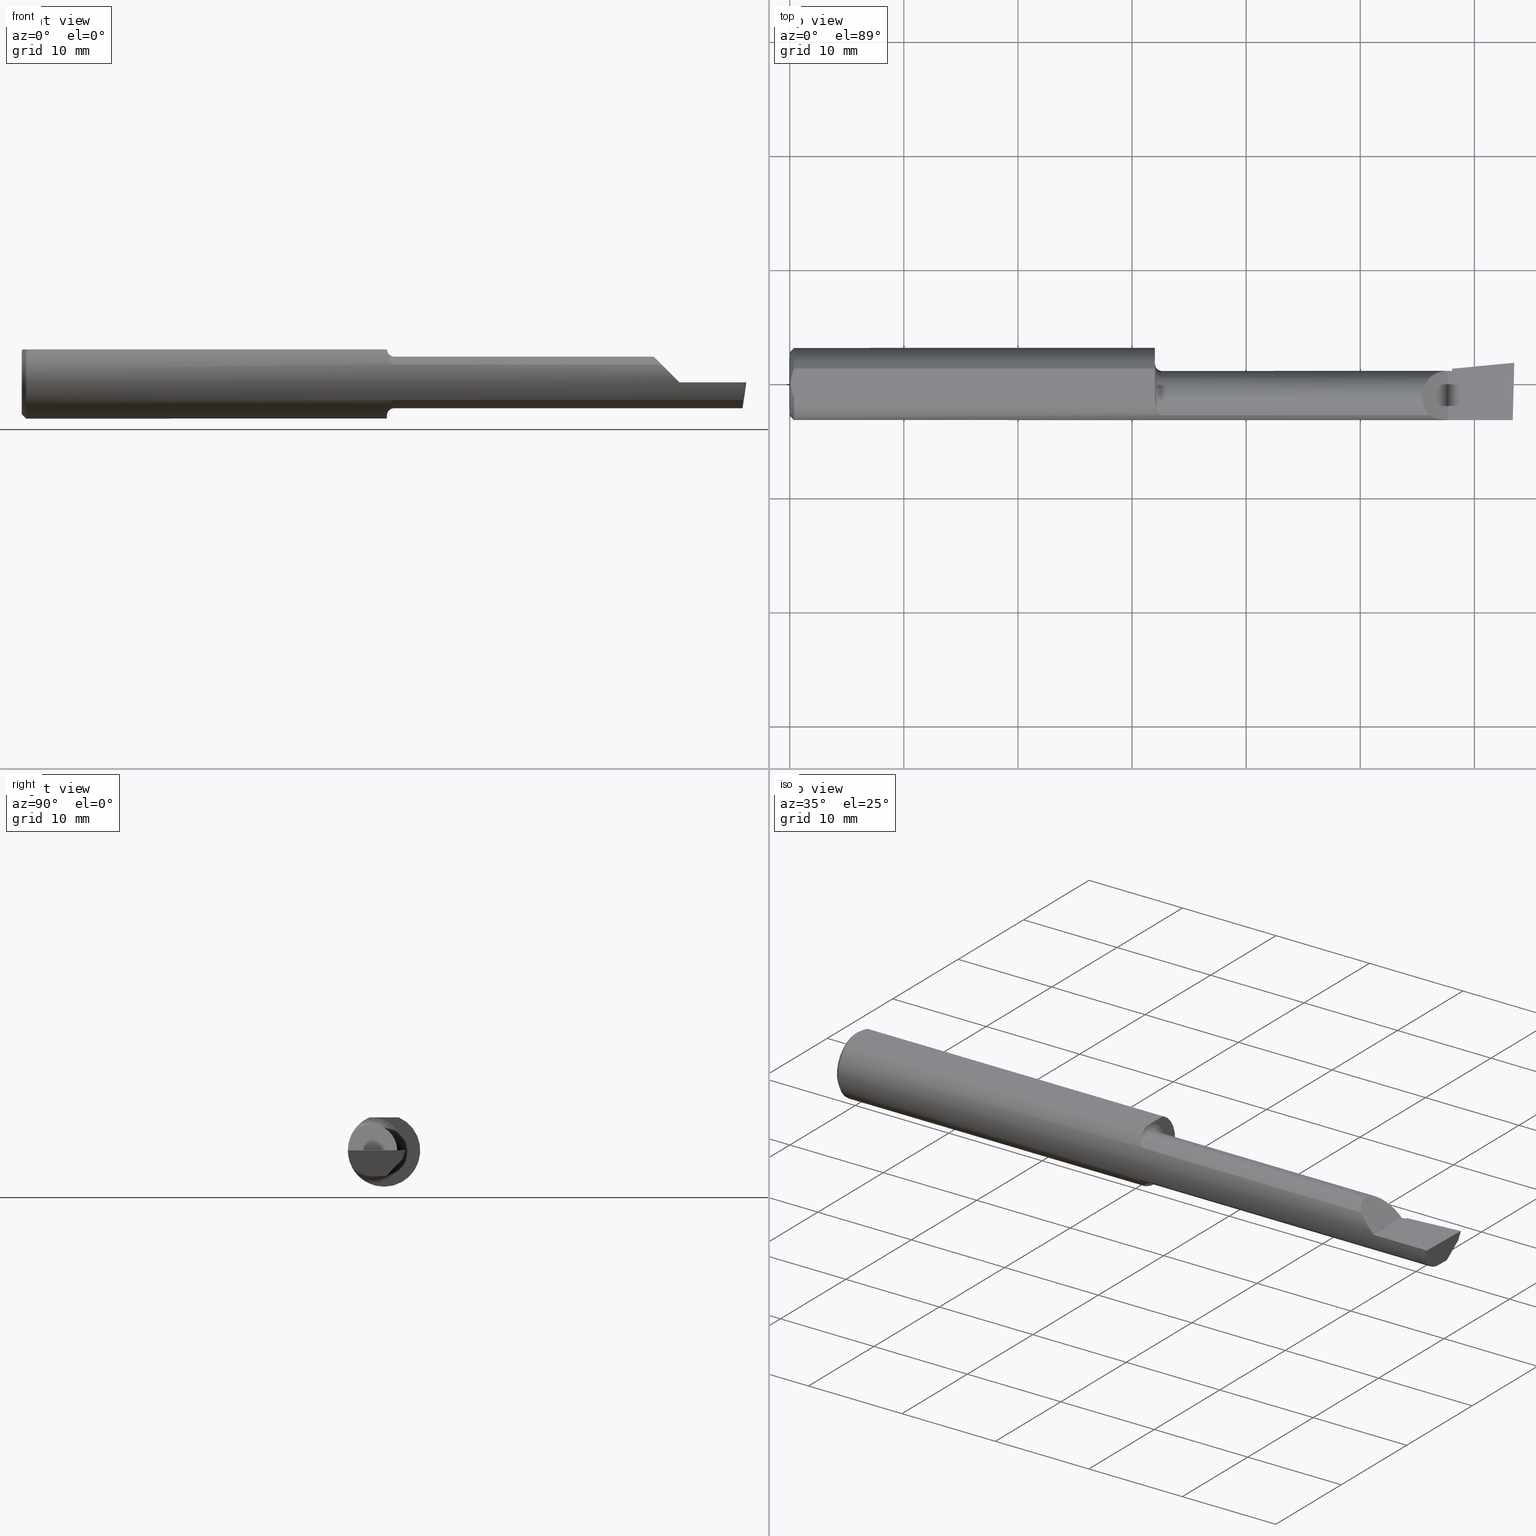
[diagram: canonical four-view strip — front | top / right | iso, engineering-drawing reading convention]
A machine part, canonical four-view strip (front | top / right | iso — engineering-drawing reading convention). The complete STEP part file that produces these views, byte-faithful:
ISO-10303-21;
HEADER;
FILE_DESCRIPTION (( 'STEP AP214' ),
    '1' );
FILE_NAME ('B2001200.STEP',
    '2019-07-25T18:29:06',
    ( '' ),
    ( '' ),
    'SwSTEP 2.0',
    'SolidWorks 2018',
    '' );
FILE_SCHEMA (( 'AUTOMOTIVE_DESIGN' ));
ENDSEC;

DATA;
#1 = EDGE_CURVE ( 'NONE', #212, #459, #601, .T. ) ;
#2 = DIRECTION ( 'NONE',  ( -1.000000000000000000, -0.0000000000000000000, -0.0000000000000000000 ) ) ;
#3 = CARTESIAN_POINT ( 'NONE',  ( 0.01499999999999999424, 0.0000000000000000000, -0.1248500000000000026 ) ) ;
#4 = VERTEX_POINT ( 'NONE', #612 ) ;
#5 = EDGE_LOOP ( 'NONE', ( #502, #96, #547, #313 ) ) ;
#6 = VECTOR ( 'NONE', #229, 39.37007874015748143 ) ;
#7 = AXIS2_PLACEMENT_3D ( 'NONE', #246, #311, #664 ) ;
#8 = CARTESIAN_POINT ( 'NONE',  ( 0.0000000000000000000, 0.0000000000000000000, 0.0000000000000000000 ) ) ;
#9 = CARTESIAN_POINT ( 'NONE',  ( 1.281430773366643461, -0.1083837666170488351, -0.06198269038834007538 ) ) ;
#10 = EDGE_CURVE ( 'NONE', #441, #703, #530, .T. ) ;
#11 = PLANE ( 'NONE',  #689 ) ;
#12 = CARTESIAN_POINT ( 'NONE',  ( 2.487308770579542028, 0.006654974371325369023, -0.08914999999999999314 ) ) ;
#13 = EDGE_CURVE ( 'NONE', #358, #156, #445, .T. ) ;
#14 = CARTESIAN_POINT ( 'NONE',  ( 0.004000000000000276772, 1.406179932551309785E-17, 0.1138500000000000345 ) ) ;
#15 = CIRCLE ( 'NONE', #607, 0.1248500000000000026 ) ;
#16 = VECTOR ( 'NONE', #574, 39.37007874015748143 ) ;
#17 = CARTESIAN_POINT ( 'NONE',  ( 2.180849999999999511, -0.04399999999999999745, 0.08914999999999992375 ) ) ;
#18 = EDGE_LOOP ( 'NONE', ( #591, #214, #261, #654, #307 ) ) ;
#19 = FACE_OUTER_BOUND ( 'NONE', #440, .T. ) ;
#20 = CARTESIAN_POINT ( 'NONE',  ( 0.004000000000000247281, 0.008831293378136248484, 0.1138500000000000345 ) ) ;
#21 = ORIENTED_EDGE ( 'NONE', *, *, #245, .F. ) ;
#22 = DIRECTION ( 'NONE',  ( 1.000000000000000000, 0.0000000000000000000, 0.0000000000000000000 ) ) ;
#23 = B_SPLINE_CURVE_WITH_KNOTS ( 'NONE', 3,
 ( #427, #216, #429, #33, #84, #262, #485, #204, #269, #527, #196, #312, #325, #706 ),
 .UNSPECIFIED., .F., .F.,
 ( 4, 2, 2, 2, 2, 2, 4 ),
 ( 4.804672440286754223E-07, 0.0005473133578846782824, 0.001094146248525327755, 0.001640979139165977445, 0.001914395584486301965, 0.002051103807146470188, 0.002187812029806637543 ),
 .UNSPECIFIED. ) ;
#24 = ADVANCED_FACE ( 'NONE', ( #404 ), #719, .T. ) ;
#25 = PLANE ( 'NONE',  #614 ) ;
#26 = ORIENTED_EDGE ( 'NONE', *, *, #158, .T. ) ;
#27 = CYLINDRICAL_SURFACE ( 'NONE', #506, 0.1248500000000000026 ) ;
#28 = EDGE_LOOP ( 'NONE', ( #331, #395, #567, #220, #241, #605 ) ) ;
#29 = CARTESIAN_POINT ( 'NONE',  ( 1.260000000000000231, 0.1748500000000000609, 0.1138500000000000068 ) ) ;
#30 = ORIENTED_EDGE ( 'NONE', *, *, #419, .F. ) ;
#31 = DIMENSIONAL_EXPONENTS ( 1.000000000000000000, 0.0000000000000000000, 0.0000000000000000000, 0.0000000000000000000, 0.0000000000000000000, 0.0000000000000000000, 0.0000000000000000000 ) ;
#32 = CARTESIAN_POINT ( 'NONE',  ( 0.0000000000000000000, 0.0000000000000000000, 0.0000000000000000000 ) ) ;
#33 = CARTESIAN_POINT ( 'NONE',  ( 1.261949480984350558, -0.07596136197082528629, 0.09933958580654499160 ) ) ;
#34 = ADVANCED_FACE ( 'NONE', ( #104 ), #217, .F. ) ;
#35 = DIRECTION ( 'NONE',  ( -0.1053106618241860248, -0.6976485211320166968, -0.7086580314005210823 ) ) ;
#36 = CARTESIAN_POINT ( 'NONE',  ( 0.008876515511621064711, 0.03469031959364227147, 0.1138500000000000206 ) ) ;
#37 = DIRECTION ( 'NONE',  ( 0.0000000000000000000, 0.0000000000000000000, 1.000000000000000000 ) ) ;
#38 = TOROIDAL_SURFACE ( 'NONE', #437, 0.1141499999999998766, 0.02499999999999993894 ) ;
#39 = ORIENTED_EDGE ( 'NONE', *, *, #454, .T. ) ;
#40 = DIRECTION ( 'NONE',  ( 0.0000000000000000000, 0.0000000000000000000, 1.000000000000000000 ) ) ;
#41 = EDGE_CURVE ( 'NONE', #208, #279, #425, .T. ) ;
#42 = EDGE_CURVE ( 'NONE', #725, #74, #260, .T. ) ;
#43 = VERTEX_POINT ( 'NONE', #57 ) ;
#44 = CIRCLE ( 'NONE', #345, 0.08914999999999986824 ) ;
#45 = CARTESIAN_POINT ( 'NONE',  ( 2.286008923699899054, 0.02626115987714458533, -0.06897064857157146622 ) ) ;
#46 = DIRECTION ( 'NONE',  ( 0.0000000000000000000, 0.0000000000000000000, 1.000000000000000000 ) ) ;
#47 = CARTESIAN_POINT ( 'NONE',  ( 4.111069666048746882E-31, -0.1248499999999999888, 9.802154982235641300E-16 ) ) ;
#48 = CARTESIAN_POINT ( 'NONE',  ( 2.285000000000000142, -0.04399999999999999745, 0.0000000000000000000 ) ) ;
#49 = CARTESIAN_POINT ( 'NONE',  ( 2.500000000000000000, -0.04399999999999999745, -0.08914999999999999314 ) ) ;
#50 = ORIENTED_EDGE ( 'NONE', *, *, #130, .T. ) ;
#51 = LINE ( 'NONE', #144, #368 ) ;
#52 = ORIENTED_EDGE ( 'NONE', *, *, #268, .T. ) ;
#53 = EDGE_CURVE ( 'NONE', #74, #43, #384, .T. ) ;
#54 = CIRCLE ( 'NONE', #532, 0.1248500000000000026 ) ;
#55 = EDGE_LOOP ( 'NONE', ( #248, #439, #30, #148 ) ) ;
#56 = DIRECTION ( 'NONE',  ( -1.000000000000000000, -0.0000000000000000000, -0.0000000000000000000 ) ) ;
#57 = CARTESIAN_POINT ( 'NONE',  ( 0.01499999999999999424, 0.0000000000000000000, -0.1248500000000000026 ) ) ;
#58 = DIRECTION ( 'NONE',  ( 0.0000000000000000000, 0.0000000000000000000, -1.000000000000000000 ) ) ;
#59 = AXIS2_PLACEMENT_3D ( 'NONE', #704, #478, #37 ) ;
#60 = EDGE_CURVE ( 'NONE', #212, #303, #652, .T. ) ;
#61 = ORIENTED_EDGE ( 'NONE', *, *, #579, .T. ) ;
#62 = CYLINDRICAL_SURFACE ( 'NONE', #438, 0.08914999999999992375 ) ;
#63 = AXIS2_PLACEMENT_3D ( 'NONE', #49, #106, #492 ) ;
#64 = CARTESIAN_POINT ( 'NONE',  ( 2.285000000000000142, 0.04514999999999999569, 9.802154982235649188E-16 ) ) ;
#65 = EDGE_CURVE ( 'NONE', #348, #150, #330, .T. ) ;
#66 = ORIENTED_EDGE ( 'NONE', *, *, #483, .F. ) ;
#67 = DIRECTION ( 'NONE',  ( 0.0000000000000000000, -3.510412528412468112E-13, -1.000000000000000000 ) ) ;
#68 = DIRECTION ( 'NONE',  ( 0.0000000000000000000, 0.0000000000000000000, 1.000000000000000000 ) ) ;
#69 = CARTESIAN_POINT ( 'NONE',  ( 0.004000000000000276772, 1.406179932551309785E-17, 0.1138500000000000345 ) ) ;
#70 = CARTESIAN_POINT ( 'NONE',  ( 0.008889541251485983883, -0.03475029298915140868, 0.1138500000000000484 ) ) ;
#71 = CARTESIAN_POINT ( 'NONE',  ( 1.272652750757542472, -0.1022351105670217114, -0.07173965961731927632 ) ) ;
#72 = VERTEX_POINT ( 'NONE', #561 ) ;
#73 = PRESENTATION_STYLE_ASSIGNMENT (( #650 ) ) ;
#74 = VERTEX_POINT ( 'NONE', #336 ) ;
#75 = LINE ( 'NONE', #498, #183 ) ;
#76 = DIRECTION ( 'NONE',  ( 0.0000000000000000000, 0.0000000000000000000, 1.000000000000000000 ) ) ;
#77 = CARTESIAN_POINT ( 'NONE',  ( 1.268397821753969978, -0.09628495161689389070, -0.07975604660947217817 ) ) ;
#78 = CARTESIAN_POINT ( 'NONE',  ( 2.270000000000000018, -0.2500000000000000555, 2.816687638038912303E-17 ) ) ;
#79 = CARTESIAN_POINT ( 'NONE',  ( 1.261502585305459334, -0.07647633808930123789, -0.09967851947582057059 ) ) ;
#80 = CARTESIAN_POINT ( 'NONE',  ( 1.285000000000000142, -0.04399999999999997663, -0.08914999999999986824 ) ) ;
#81 = EDGE_LOOP ( 'NONE', ( #709, #166, #182, #558, #554, #578 ) ) ;
#82 = CARTESIAN_POINT ( 'NONE',  ( 2.285000000000000142, -0.2500000000000000555, 2.187580619199813988E-17 ) ) ;
#83 = DIRECTION ( 'NONE',  ( 0.0000000000000000000, 0.0000000000000000000, 1.000000000000000000 ) ) ;
#84 = CARTESIAN_POINT ( 'NONE',  ( 1.263123628621569905, -0.08156933505717113564, 0.09478144068341103068 ) ) ;
#85 = B_SPLINE_CURVE_WITH_KNOTS ( 'NONE', 3,
 ( #678, #684, #70, #346, #116, #623 ),
 .UNSPECIFIED., .F., .F.,
 ( 4, 2, 4 ),
 ( 0.0009713770995563918240, 0.001637314107522508649, 0.002303251115488625256 ),
 .UNSPECIFIED. ) ;
#86 = DIRECTION ( 'NONE',  ( -1.000000000000000000, -0.0000000000000000000, -0.0000000000000000000 ) ) ;
#87 = VECTOR ( 'NONE', #421, 39.37007874015748143 ) ;
#88 = VERTEX_POINT ( 'NONE', #344 ) ;
#89 = DIRECTION ( 'NONE',  ( 0.0000000000000000000, 0.0000000000000000000, 1.000000000000000000 ) ) ;
#90 = ORIENTED_EDGE ( 'NONE', *, *, #323, .T. ) ;
#91 = FILL_AREA_STYLE_COLOUR ( '', #349 ) ;
#92 = DIRECTION ( 'NONE',  ( 0.9953961983671800740, 0.09584575252021032554, -0.0000000000000000000 ) ) ;
#93 = DIRECTION ( 'NONE',  ( 0.0000000000000000000, 1.000000000000000000, 8.537024980200821325E-17 ) ) ;
#94 = ADVANCED_FACE ( 'NONE', ( #589 ), #135, .F. ) ;
#95 = LINE ( 'NONE', #535, #127 ) ;
#96 = ORIENTED_EDGE ( 'NONE', *, *, #226, .T. ) ;
#97 = LINE ( 'NONE', #405, #655 ) ;
#98 = ORIENTED_EDGE ( 'NONE', *, *, #100, .F. ) ;
#99 = VERTEX_POINT ( 'NONE', #69 ) ;
#100 = EDGE_CURVE ( 'NONE', #72, #728, #720, .T. ) ;
#101 = CARTESIAN_POINT ( 'NONE',  ( 0.0000000000000000000, 0.0000000000000000000, 0.0000000000000000000 ) ) ;
#102 = CARTESIAN_POINT ( 'NONE',  ( 2.287426487320435076, 0.01153919879151824208, -0.08145767591333361035 ) ) ;
#103 = ORIENTED_EDGE ( 'NONE', *, *, #41, .T. ) ;
#104 = FACE_OUTER_BOUND ( 'NONE', #370, .T. ) ;
#105 = EDGE_LOOP ( 'NONE', ( #450, #434, #414, #447, #90 ) ) ;
#106 = DIRECTION ( 'NONE',  ( -4.858719700838190352E-34, -8.537024980200821325E-17, 1.000000000000000000 ) ) ;
#107 = AXIS2_PLACEMENT_3D ( 'NONE', #638, #193, #637 ) ;
#108 = CARTESIAN_POINT ( 'NONE',  ( 2.284439022446591583, 0.04256520776931346783, -0.03200000000000000067 ) ) ;
#109 = EDGE_LOOP ( 'NONE', ( #412, #540 ) ) ;
#110 = EDGE_CURVE ( 'NONE', #150, #441, #388, .T. ) ;
#111 = VECTOR ( 'NONE', #254, 39.37007874015748143 ) ;
#112 = ORIENTED_EDGE ( 'NONE', *, *, #483, .T. ) ;
#113 = CARTESIAN_POINT ( 'NONE',  ( 1.260000000000000453, -0.03710796596384907664, 0.1138500000000000206 ) ) ;
#114 = CARTESIAN_POINT ( 'NONE',  ( 0.01499999999999999424, 1.528971528735470422E-17, 0.1248500000000000026 ) ) ;
#115 = CARTESIAN_POINT ( 'NONE',  ( 2.289728664559028459, -0.01236982598015588276, -0.08914999999999999314 ) ) ;
#116 = CARTESIAN_POINT ( 'NONE',  ( 0.004000000000000249883, -0.008832088689467597689, 0.1138500000000000484 ) ) ;
#117 = FACE_OUTER_BOUND ( 'NONE', #324, .T. ) ;
#118 = AXIS2_PLACEMENT_3D ( 'NONE', #392, #335, #218 ) ;
#119 = CARTESIAN_POINT ( 'NONE',  ( 2.485982323393565174, -0.04399999999999999745, -0.08914999999999999314 ) ) ;
#120 = ORIENTED_EDGE ( 'NONE', *, *, #211, .F. ) ;
#121 = FACE_OUTER_BOUND ( 'NONE', #464, .T. ) ;
#122 = CARTESIAN_POINT ( 'NONE',  ( 1.285000000000000142, -0.04399999999999999745, 0.0000000000000000000 ) ) ;
#123 = ORIENTED_EDGE ( 'NONE', *, *, #10, .F. ) ;
#124 = DIRECTION ( 'NONE',  ( -1.000000000000000000, -0.0000000000000000000, -0.0000000000000000000 ) ) ;
#125 = DIRECTION ( 'NONE',  ( 0.0000000000000000000, 0.0000000000000000000, 1.000000000000000000 ) ) ;
#126 = CARTESIAN_POINT ( 'NONE',  ( 1.274260533375047189, -0.1040753176265711288, -0.06902783361385360361 ) ) ;
#127 = VECTOR ( 'NONE', #35, 39.37007874015748854 ) ;
#128 = ORIENTED_EDGE ( 'NONE', *, *, #42, .F. ) ;
#129 = ORIENTED_EDGE ( 'NONE', *, *, #597, .T. ) ;
#130 = EDGE_CURVE ( 'NONE', #164, #617, #202, .T. ) ;
#131 = ADVANCED_FACE ( 'NONE', ( #180 ), #242, .T. ) ;
#132 = CARTESIAN_POINT ( 'NONE',  ( 1.285000000000000142, -0.04399999999999999745, 0.0000000000000000000 ) ) ;
#133 = CARTESIAN_POINT ( 'NONE',  ( 1.266341859756230370, -0.09164079654472230552, -0.08508064213884949933 ) ) ;
#134 = EDGE_CURVE ( 'NONE', #617, #424, #286, .T. ) ;
#135 = TOROIDAL_SURFACE ( 'NONE', #449, 0.1141499999999998766, 0.02499999999999993894 ) ;
#136 = LENGTH_MEASURE_WITH_UNIT ( LENGTH_MEASURE( 0.02539999999999999897 ), #428 );
#137 = CARTESIAN_POINT ( 'NONE',  ( 2.285000000000000142, 0.05244785463753196680, -8.956639302125194492E-16 ) ) ;
#138 = ORIENTED_EDGE ( 'NONE', *, *, #722, .F. ) ;
#139 = ORIENTED_EDGE ( 'NONE', *, *, #141, .F. ) ;
#140 = ADVANCED_FACE ( 'NONE', ( #121 ), #38, .F. ) ;
#141 = EDGE_CURVE ( 'NONE', #43, #422, #15, .T. ) ;
#142 = CARTESIAN_POINT ( 'NONE',  ( 0.0000000000000000000, 0.0000000000000000000, 0.0000000000000000000 ) ) ;
#143 = CARTESIAN_POINT ( 'NONE',  ( 0.01166851468367536074, 0.04312442857252158507, 0.1138500000000000345 ) ) ;
#144 = CARTESIAN_POINT ( 'NONE',  ( 2.285000000000000142, -0.04399999999999999745, -0.08914999999999999314 ) ) ;
#145 = DIMENSIONAL_EXPONENTS ( 1.000000000000000000, 0.0000000000000000000, 0.0000000000000000000, 0.0000000000000000000, 0.0000000000000000000, 0.0000000000000000000, 0.0000000000000000000 ) ;
#146 = CARTESIAN_POINT ( 'NONE',  ( 2.494815187529301426, -0.1248500000000000304, -6.610128768667490488E-17 ) ) ;
#147 = PRODUCT_CONTEXT ( 'NONE', #484, 'mechanical' ) ;
#148 = ORIENTED_EDGE ( 'NONE', *, *, #533, .F. ) ;
#149 = CIRCLE ( 'NONE', #399, 0.08914999999999986824 ) ;
#150 = VERTEX_POINT ( 'NONE', #64 ) ;
#151 = AXIS2_PLACEMENT_3D ( 'NONE', #707, #86, #481 ) ;
#152 =( GEOMETRIC_REPRESENTATION_CONTEXT ( 3 ) GLOBAL_UNCERTAINTY_ASSIGNED_CONTEXT ( ( #309 ) ) GLOBAL_UNIT_ASSIGNED_CONTEXT ( ( #308, #364, #488 ) ) REPRESENTATION_CONTEXT ( 'NONE', 'WORKASPACE' ) );
#153 = ORIENTED_EDGE ( 'NONE', *, *, #680, .T. ) ;
#154 = VECTOR ( 'NONE', #168, 39.37007874015748143 ) ;
#155 = ORIENTED_EDGE ( 'NONE', *, *, #13, .T. ) ;
#156 = VERTEX_POINT ( 'NONE', #293 ) ;
#157 = CARTESIAN_POINT ( 'NONE',  ( 2.491543817870046862, -0.2497785670779703315, -6.474963748791634766E-17 ) ) ;
#158 = EDGE_CURVE ( 'NONE', #303, #422, #715, .T. ) ;
#159 = FILL_AREA_STYLE ('',( #332 ) ) ;
#160 =( CONVERSION_BASED_UNIT ( 'INCH', #304 ) LENGTH_UNIT ( ) NAMED_UNIT ( #145 ) );
#161 = CARTESIAN_POINT ( 'NONE',  ( 0.0000000000000000000, -0.04399999999999998357, -0.08914999999999992375 ) ) ;
#162 = ORIENTED_EDGE ( 'NONE', *, *, #454, .F. ) ;
#163 = LENGTH_MEASURE_WITH_UNIT ( LENGTH_MEASURE( 0.02539999999999999897 ), #366 );
#164 = VERTEX_POINT ( 'NONE', #115 ) ;
#165 = DIRECTION ( 'NONE',  ( 0.06658005426110483183, -0.6914603011188220627, -0.7193398003386550776 ) ) ;
#166 = ORIENTED_EDGE ( 'NONE', *, *, #10, .T. ) ;
#167 = CARTESIAN_POINT ( 'NONE',  ( 1.285000000000000142, -0.04399999999999999745, 0.0000000000000000000 ) ) ;
#168 = DIRECTION ( 'NONE',  ( -1.000000000000000000, -0.0000000000000000000, -0.0000000000000000000 ) ) ;
#169 = DIRECTION ( 'NONE',  ( -1.000000000000000000, -0.0000000000000000000, -0.0000000000000000000 ) ) ;
#170 = CARTESIAN_POINT ( 'NONE',  ( 0.0000000000000000000, -0.04399999999999999745, 0.0000000000000000000 ) ) ;
#171 = CARTESIAN_POINT ( 'NONE',  ( 2.487716879513912627, -0.1088159090909092686, -0.06120964326573853642 ) ) ;
#172 = EDGE_LOOP ( 'NONE', ( #635, #512, #487, #668, #569, #267, #521 ) ) ;
#173 = EDGE_CURVE ( 'NONE', #522, #224, #648, .T. ) ;
#174 = VERTEX_POINT ( 'NONE', #467 ) ;
#175 = ORIENTED_EDGE ( 'NONE', *, *, #263, .F. ) ;
#176 = DIRECTION ( 'NONE',  ( -1.000000000000000000, -0.0000000000000000000, -0.0000000000000000000 ) ) ;
#177 = DIRECTION ( 'NONE',  ( 0.0000000000000000000, 0.0000000000000000000, 1.000000000000000000 ) ) ;
#178 = CARTESIAN_POINT ( 'NONE',  ( 2.285000000000000142, -0.04399999999999999745, -0.08914999999999999314 ) ) ;
#179 = CARTESIAN_POINT ( 'NONE',  ( 1.285000000000000142, -0.1088159090909091714, -0.06120964326573855724 ) ) ;
#180 = FACE_OUTER_BOUND ( 'NONE', #5, .T. ) ;
#181 = DIRECTION ( 'NONE',  ( 0.0000000000000000000, 0.0000000000000000000, -1.000000000000000000 ) ) ;
#182 = ORIENTED_EDGE ( 'NONE', *, *, #583, .F. ) ;
#183 = VECTOR ( 'NONE', #219, 39.37007874015748854 ) ;
#184 = EDGE_CURVE ( 'NONE', #424, #441, #239, .T. ) ;
#185 = CARTESIAN_POINT ( 'NONE',  ( 2.285000000000000142, -0.04399999999999999745, 0.0000000000000000000 ) ) ;
#186 = ADVANCED_FACE ( 'NONE', ( #117 ), #367, .T. ) ;
#187 = STYLED_ITEM ( 'NONE', ( #73 ), #568 ) ;
#188 = CARTESIAN_POINT ( 'NONE',  ( 2.500000000000000000, -0.04399999999999999745, -0.08914999999999999314 ) ) ;
#189 = ORIENTED_EDGE ( 'NONE', *, *, #209, .T. ) ;
#190 = LINE ( 'NONE', #47, #154 ) ;
#191 = ADVANCED_FACE ( 'NONE', ( #700 ), #515, .F. ) ;
#192 = VERTEX_POINT ( 'NONE', #297 ) ;
#193 = DIRECTION ( 'NONE',  ( -0.9922060308645472837, 0.02598182930469481594, 0.1218693434051524027 ) ) ;
#194 = ORIENTED_EDGE ( 'NONE', *, *, #53, .F. ) ;
#195 = CARTESIAN_POINT ( 'NONE',  ( 1.785000000000000142, -0.1088159090909092686, 0.06120964326573853642 ) ) ;
#196 = CARTESIAN_POINT ( 'NONE',  ( 1.278607476457615633, -0.1072127130250407345, 0.06398671514685029538 ) ) ;
#197 = AXIS2_PLACEMENT_3D ( 'NONE', #611, #619, #275 ) ;
#198 = EDGE_CURVE ( 'NONE', #99, #4, #712, .T. ) ;
#199 = DIRECTION ( 'NONE',  ( -0.1240019227989398731, -0.3022330132596650065, -0.9451342385281302771 ) ) ;
#200 = ADVANCED_FACE ( 'NONE', ( #653 ), #494, .T. ) ;
#201 = CARTESIAN_POINT ( 'NONE',  ( 1.285000000000000142, -0.1088159090909091853, 0.06120964326573852948 ) ) ;
#202 = LINE ( 'NONE', #236, #510 ) ;
#203 = LINE ( 'NONE', #78, #287 ) ;
#204 = CARTESIAN_POINT ( 'NONE',  ( 1.272671163500630920, -0.1022596512740079899, 0.07170602318513191742 ) ) ;
#205 = ORIENTED_EDGE ( 'NONE', *, *, #658, .F. ) ;
#206 = VECTOR ( 'NONE', #67, 39.37007874015748143 ) ;
#207 =( BOUNDED_CURVE ( )  B_SPLINE_CURVE ( 3, ( #442, #723, #227, #727 ),
 .UNSPECIFIED., .F., .F. ) 
 B_SPLINE_CURVE_WITH_KNOTS ( ( 4, 4 ),
 ( 5.679229040429019548, 6.493234751459755927 ),
 .UNSPECIFIED. ) 
 CURVE ( )  GEOMETRIC_REPRESENTATION_ITEM ( )  RATIONAL_B_SPLINE_CURVE ( ( 1.000000000000000000, 0.9455409277260479195, 0.9455409277260479195, 1.000000000000000000 ) ) 
 REPRESENTATION_ITEM ( '' )  );
#208 = VERTEX_POINT ( 'NONE', #431 ) ;
#209 = EDGE_CURVE ( 'NONE', #592, #358, #509, .T. ) ;
#210 = SURFACE_SIDE_STYLE ('',( #590 ) ) ;
#211 = EDGE_CURVE ( 'NONE', #717, #72, #257, .T. ) ;
#212 = VERTEX_POINT ( 'NONE', #256 ) ;
#213 = LINE ( 'NONE', #114, #474 ) ;
#214 = ORIENTED_EDGE ( 'NONE', *, *, #579, .F. ) ;
#215 =( GEOMETRIC_REPRESENTATION_CONTEXT ( 3 ) GLOBAL_UNCERTAINTY_ASSIGNED_CONTEXT ( ( #369 ) ) GLOBAL_UNIT_ASSIGNED_CONTEXT ( ( #160, #613, #276 ) ) REPRESENTATION_CONTEXT ( 'NONE', 'WORKASPACE' ) );
#216 = CARTESIAN_POINT ( 'NONE',  ( 1.260007259122735812, -0.05787968516969616006, 0.1108623250892746409 ) ) ;
#217 = PLANE ( 'NONE',  #251 ) ;
#218 = DIRECTION ( 'NONE',  ( 0.0000000000000000000, 0.0000000000000000000, 1.000000000000000000 ) ) ;
#219 = DIRECTION ( 'NONE',  ( 0.0000000000000000000, 0.6963153109074922131, 0.7177360153954950306 ) ) ;
#220 = ORIENTED_EDGE ( 'NONE', *, *, #296, .F. ) ;
#221 = CARTESIAN_POINT ( 'NONE',  ( 1.285000000000000142, -0.04399999999999999745, 0.1141499999999998766 ) ) ;
#222 = ORIENTED_EDGE ( 'NONE', *, *, #134, .T. ) ;
#223 = FACE_OUTER_BOUND ( 'NONE', #55, .T. ) ;
#224 = VERTEX_POINT ( 'NONE', #536 ) ;
#225 = DIRECTION ( 'NONE',  ( -1.000000000000000000, 0.0000000000000000000, -0.0000000000000000000 ) ) ;
#226 = EDGE_CURVE ( 'NONE', #728, #459, #403, .T. ) ;
#227 = CARTESIAN_POINT ( 'NONE',  ( 2.485330758133041495, -0.06888227343086726628, -0.08914999999999992375 ) ) ;
#228 = CARTESIAN_POINT ( 'NONE',  ( 2.285000000000000142, 0.05244785463752904553, 0.0000000000000000000 ) ) ;
#229 = DIRECTION ( 'NONE',  ( -1.000000000000000000, -0.0000000000000000000, -0.0000000000000000000 ) ) ;
#230 = LINE ( 'NONE', #29, #708 ) ;
#231 = ORIENTED_EDGE ( 'NONE', *, *, #389, .F. ) ;
#232 = FACE_OUTER_BOUND ( 'NONE', #105, .T. ) ;
#233 = DIRECTION ( 'NONE',  ( 1.000000000000000000, 0.0000000000000000000, 0.0000000000000000000 ) ) ;
#234 = CLOSED_SHELL ( 'NONE', ( #472, #131, #94, #705, #186, #639, #523, #191, #415, #34, #432, #200, #140, #417, #24, #423, #317, #595, #587, #606, #646 ) ) ;
#235 = CARTESIAN_POINT ( 'NONE',  ( 0.0000000000000000000, 0.0000000000000000000, 0.0000000000000000000 ) ) ;
#236 = CARTESIAN_POINT ( 'NONE',  ( 2.495050700799709809, 0.007400437463436950435, -0.08914999999999999314 ) ) ;
#237 = CARTESIAN_POINT ( 'NONE',  ( 2.285000000000000142, 0.05244785463753253579, 9.802155642165059035E-16 ) ) ;
#238 = CARTESIAN_POINT ( 'NONE',  ( 2.485991928762870451, -0.04363318574524892302, -0.08914999999999999314 ) ) ;
#239 = LINE ( 'NONE', #188, #270 ) ;
#240 = AXIS2_PLACEMENT_3D ( 'NONE', #221, #672, #615 ) ;
#241 = ORIENTED_EDGE ( 'NONE', *, *, #13, .F. ) ;
#242 = CYLINDRICAL_SURFACE ( 'NONE', #553, 0.08914999999999992375 ) ;
#243 = CARTESIAN_POINT ( 'NONE',  ( 2.285000000000000142, 0.03673923312418921755, 5.514374176451775972E-15 ) ) ;
#244 = CARTESIAN_POINT ( 'NONE',  ( 2.270000000000000018, 0.04514999999999985691, 2.816687638038912303E-17 ) ) ;
#245 = EDGE_CURVE ( 'NONE', #691, #289, #316, .T. ) ;
#246 = CARTESIAN_POINT ( 'NONE',  ( 0.01499999999999999424, 0.0000000000000000000, 0.0000000000000000000 ) ) ;
#247 = CARTESIAN_POINT ( 'NONE',  ( 1.278584160803691638, -0.1072016464447190648, -0.06400548237000629193 ) ) ;
#248 = ORIENTED_EDGE ( 'NONE', *, *, #327, .T. ) ;
#249 = FACE_OUTER_BOUND ( 'NONE', #548, .T. ) ;
#250 = DIRECTION ( 'NONE',  ( -1.000000000000000000, 5.691349986800549142E-18, -0.0000000000000000000 ) ) ;
#251 = AXIS2_PLACEMENT_3D ( 'NONE', #724, #393, #544 ) ;
#252 = AXIS2_PLACEMENT_3D ( 'NONE', #549, #394, #666 ) ;
#253 = DIRECTION ( 'NONE',  ( 0.0000000000000000000, 0.0000000000000000000, 1.000000000000000000 ) ) ;
#254 = DIRECTION ( 'NONE',  ( 0.0000000000000000000, 0.2936076258024063468, 0.9559260233253795702 ) ) ;
#255 = DIRECTION ( 'NONE',  ( 0.0000000000000000000, -1.000000000000000000, 1.464745492742491612E-16 ) ) ;
#256 = CARTESIAN_POINT ( 'NONE',  ( 1.260001800064805000, -0.04399999999999999745, 0.1138500000000000345 ) ) ;
#257 = LINE ( 'NONE', #195, #87 ) ;
#258 = LINE ( 'NONE', #82, #16 ) ;
#259 = EDGE_LOOP ( 'NONE', ( #175, #677, #702, #103, #661, #387, #659 ) ) ;
#260 = CIRCLE ( 'NONE', #573, 0.1098499999999996424 ) ;
#261 = ORIENTED_EDGE ( 'NONE', *, *, #519, .T. ) ;
#262 = CARTESIAN_POINT ( 'NONE',  ( 1.266367198475050415, -0.09170680217278595614, 0.08501141308632335913 ) ) ;
#263 = EDGE_CURVE ( 'NONE', #691, #489, #413, .T. ) ;
#264 = CARTESIAN_POINT ( 'NONE',  ( 2.285000000000000142, 0.04261922376399134016, -0.03200000000000000761 ) ) ;
#265 = EDGE_LOOP ( 'NONE', ( #676, #667, #162 ) ) ;
#266 = AXIS2_PLACEMENT_3D ( 'NONE', #295, #407, #575 ) ;
#267 = ORIENTED_EDGE ( 'NONE', *, *, #158, .F. ) ;
#268 = EDGE_CURVE ( 'NONE', #303, #717, #23, .T. ) ;
#269 = CARTESIAN_POINT ( 'NONE',  ( 1.274298474000562509, -0.1041086701288377048, 0.06897617952030522803 ) ) ;
#270 = VECTOR ( 'NONE', #250, 39.37007874015748143 ) ;
#271 = ORIENTED_EDGE ( 'NONE', *, *, #362, .T. ) ;
#272 = ORIENTED_EDGE ( 'NONE', *, *, #550, .T. ) ;
#273 = PLANE ( 'NONE',  #252 ) ;
#274 = DIRECTION ( 'NONE',  ( -1.000000000000000000, -0.0000000000000000000, -0.0000000000000000000 ) ) ;
#275 = DIRECTION ( 'NONE',  ( 0.0000000000000000000, 0.0000000000000000000, 1.000000000000000000 ) ) ;
#276 =( NAMED_UNIT ( * ) SI_UNIT ( $, .STERADIAN. ) SOLID_ANGLE_UNIT ( ) );
#277 = CIRCLE ( 'NONE', #151, 0.1248500000000000026 ) ;
#278 = DIRECTION ( 'NONE',  ( 0.0000000000000000000, 0.0000000000000000000, 1.000000000000000000 ) ) ;
#279 = VERTEX_POINT ( 'NONE', #382 ) ;
#280 = VECTOR ( 'NONE', #599, 39.37007874015748143 ) ;
#281 = EDGE_LOOP ( 'NONE', ( #231, #155, #642, #645, #566, #603 ) ) ;
#282 = DIRECTION ( 'NONE',  ( -1.000000000000000000, -0.0000000000000000000, -0.0000000000000000000 ) ) ;
#283 = CARTESIAN_POINT ( 'NONE',  ( 1.285000000000000142, -0.04399999999999999745, 0.0000000000000000000 ) ) ;
#284 = DIRECTION ( 'NONE',  ( -1.000000000000000000, -0.0000000000000000000, -0.0000000000000000000 ) ) ;
#285 = EDGE_CURVE ( 'NONE', #683, #72, #479, .T. ) ;
#286 = LINE ( 'NONE', #238, #298 ) ;
#287 = VECTOR ( 'NONE', #352, 39.37007874015748143 ) ;
#288 = CARTESIAN_POINT ( 'NONE',  ( 1.260000000000000231, -0.03572957074874805877, 0.1138500000000000345 ) ) ;
#289 = VERTEX_POINT ( 'NONE', #714 ) ;
#290 = VECTOR ( 'NONE', #334, 39.37007874015748143 ) ;
#291 = DIRECTION ( 'NONE',  ( -1.000000000000000000, -0.0000000000000000000, -0.0000000000000000000 ) ) ;
#292 = ORIENTED_EDGE ( 'NONE', *, *, #173, .F. ) ;
#293 = CARTESIAN_POINT ( 'NONE',  ( 2.500000000000007550, 0.07315000000001690983, 5.243440742839345051E-14 ) ) ;
#294 = CARTESIAN_POINT ( 'NONE',  ( 2.286376142476870488, -0.006849672022903474482, -0.08914999999999999314 ) ) ;
#295 = CARTESIAN_POINT ( 'NONE',  ( 2.500000000000000000, 0.1748500000000000609, 0.1138500000000000068 ) ) ;
#296 = EDGE_CURVE ( 'NONE', #156, #289, #351, .T. ) ;
#297 = CARTESIAN_POINT ( 'NONE',  ( 2.284999999999997478, 0.03673923312417560344, -0.03806087642519848796 ) ) ;
#298 = VECTOR ( 'NONE', #629, 39.37007874015748854 ) ;
#299 = ORIENTED_EDGE ( 'NONE', *, *, #625, .T. ) ;
#300 = EDGE_LOOP ( 'NONE', ( #129, #153, #61, #350 ) ) ;
#301 = CARTESIAN_POINT ( 'NONE',  ( 2.270000000000000018, -0.1248500000000000165, 2.816687638038912303E-17 ) ) ;
#302 = PLANE ( 'NONE',  #721 ) ;
#303 = VERTEX_POINT ( 'NONE', #365 ) ;
#304 = LENGTH_MEASURE_WITH_UNIT ( LENGTH_MEASURE( 0.02539999999999999897 ), #496 );
#305 = DIMENSIONAL_EXPONENTS ( 1.000000000000000000, 0.0000000000000000000, 0.0000000000000000000, 0.0000000000000000000, 0.0000000000000000000, 0.0000000000000000000, 0.0000000000000000000 ) ;
#306 = CARTESIAN_POINT ( 'NONE',  ( 2.270000000000000018, 0.04514999999999985691, 2.816687638038912303E-17 ) ) ;
#307 = ORIENTED_EDGE ( 'NONE', *, *, #583, .T. ) ;
#308 =( CONVERSION_BASED_UNIT ( 'INCH', #136 ) LENGTH_UNIT ( ) NAMED_UNIT ( #31 ) );
#309 = UNCERTAINTY_MEASURE_WITH_UNIT (LENGTH_MEASURE( 1.000000000000000082E-05 ), #308, 'distance_accuracy_value', 'NONE');
#310 = DIRECTION ( 'NONE',  ( -1.000000000000000000, -0.0000000000000000000, -0.0000000000000000000 ) ) ;
#311 = DIRECTION ( 'NONE',  ( 1.000000000000000000, 0.0000000000000000000, 0.0000000000000000000 ) ) ;
#312 = CARTESIAN_POINT ( 'NONE',  ( 1.281429951084914753, -0.1083820298415334310, 0.06198549150327738178 ) ) ;
#313 = ORIENTED_EDGE ( 'NONE', *, *, #211, .T. ) ;
#314 = CIRCLE ( 'NONE', #59, 0.02499999999999993894 ) ;
#315 = ORIENTED_EDGE ( 'NONE', *, *, #198, .T. ) ;
#316 = LINE ( 'NONE', #588, #710 ) ;
#317 = ADVANCED_FACE ( 'NONE', ( #249 ), #529, .F. ) ;
#318 = AXIS2_PLACEMENT_3D ( 'NONE', #32, #89, #426 ) ;
#319 = PRODUCT ( 'B2001200', 'B2001200', '', ( #147 ) ) ;
#320 = ORIENTED_EDGE ( 'NONE', *, *, #1, .F. ) ;
#321 = FACE_OUTER_BOUND ( 'NONE', #109, .T. ) ;
#322 = EDGE_LOOP ( 'NONE', ( #693, #138, #465, #377, #516 ) ) ;
#323 = EDGE_CURVE ( 'NONE', #192, #691, #75, .T. ) ;
#324 = EDGE_LOOP ( 'NONE', ( #128, #457, #315, #520, #194 ) ) ;
#325 = CARTESIAN_POINT ( 'NONE',  ( 1.283151621368557205, -0.1088159090914120053, 0.06120964326484504281 ) ) ;
#326 = CARTESIAN_POINT ( 'NONE',  ( 2.289131370391417342, -0.006166688875843243448, -0.08914999999999999314 ) ) ;
#327 = EDGE_CURVE ( 'NONE', #192, #164, #514, .T. ) ;
#328 = CARTESIAN_POINT ( 'NONE',  ( 1.260000000000000231, 0.07014999999999987912, 0.0000000000000000000 ) ) ;
#329 = MANIFOLD_SOLID_BREP ( 'Extrude7', #234 ) ;
#330 = LINE ( 'NONE', #551, #546 ) ;
#331 = ORIENTED_EDGE ( 'NONE', *, *, #381, .T. ) ;
#332 = FILL_AREA_STYLE_COLOUR ( '', #604 ) ;
#333 = AXIS2_PLACEMENT_3D ( 'NONE', #433, #310, #40 ) ;
#334 = DIRECTION ( 'NONE',  ( 0.02617694830787468258, 0.9996573249755572599, -1.081567693920923293E-17 ) ) ;
#335 = DIRECTION ( 'NONE',  ( -1.000000000000000000, -0.0000000000000000000, -0.0000000000000000000 ) ) ;
#336 = CARTESIAN_POINT ( 'NONE',  ( 0.0000000000000000000, 0.0000000000000000000, -0.1098499999999996424 ) ) ;
#337 = PRODUCT_DEFINITION_SHAPE ( 'NONE', 'NONE',  #469 ) ;
#338 = DIRECTION ( 'NONE',  ( -1.000000000000000000, -0.0000000000000000000, -0.0000000000000000000 ) ) ;
#339 = ORIENTED_EDGE ( 'NONE', *, *, #296, .T. ) ;
#340 = VERTEX_POINT ( 'NONE', #596 ) ;
#341 = CARTESIAN_POINT ( 'NONE',  ( 1.260001123980412752, -0.03986479258532069775, 0.1138500000000000484 ) ) ;
#342 = CARTESIAN_POINT ( 'NONE',  ( 1.260001800064805000, -0.04520694029916791368, 0.1138500000000000206 ) ) ;
#343 = DIRECTION ( 'NONE',  ( -1.000000000000000000, -0.0000000000000000000, -0.0000000000000000000 ) ) ;
#344 = CARTESIAN_POINT ( 'NONE',  ( 2.289131370391417342, -0.006166688875843243448, -0.08914999999999999314 ) ) ;
#345 = AXIS2_PLACEMENT_3D ( 'NONE', #283, #343, #253 ) ;
#346 = CARTESIAN_POINT ( 'NONE',  ( 0.005037769558486251270, -0.01754148797401016216, 0.1138500000000000206 ) ) ;
#347 = DIRECTION ( 'NONE',  ( 1.000000000000000000, 0.0000000000000000000, 0.0000000000000000000 ) ) ;
#348 = VERTEX_POINT ( 'NONE', #306 ) ;
#349 = COLOUR_RGB ( '',0.7529411764705882248, 0.7529411764705882248, 0.7529411764705882248 ) ;
#350 = ORIENTED_EDGE ( 'NONE', *, *, #357, .T. ) ;
#351 = LINE ( 'NONE', #482, #378 ) ;
#352 = DIRECTION ( 'NONE',  ( -0.0000000000000000000, 1.000000000000000000, -0.0000000000000000000 ) ) ;
#353 = DIRECTION ( 'NONE',  ( 1.000000000000000000, 0.0000000000000000000, 0.0000000000000000000 ) ) ;
#354 =( BOUNDED_CURVE ( )  B_SPLINE_CURVE ( 3, ( #17, #524, #586, #244 ),
 .UNSPECIFIED., .F., .T. ) 
 B_SPLINE_CURVE_WITH_KNOTS ( ( 4, 4 ),
 ( 0.0000000000000000000, 1.570796326794896558 ),
 .UNSPECIFIED. ) 
 CURVE ( )  GEOMETRIC_REPRESENTATION_ITEM ( )  RATIONAL_B_SPLINE_CURVE ( ( 1.000000000000000000, 0.8047378541243649375, 0.8047378541243649375, 1.000000000000000000 ) ) 
 REPRESENTATION_ITEM ( '' )  );
#355 = DIRECTION ( 'NONE',  ( 0.9953961983671801850, 0.09584575252020946512, -3.364581304420641163E-14 ) ) ;
#356 = DIRECTION ( 'NONE',  ( 0.0000000000000000000, 0.0000000000000000000, -1.000000000000000000 ) ) ;
#357 = EDGE_CURVE ( 'NONE', #390, #224, #359, .T. ) ;
#358 = VERTEX_POINT ( 'NONE', #730 ) ;
#359 = CIRCLE ( 'NONE', #118, 0.1141499999999998766 ) ;
#360 = PLANE ( 'NONE',  #571 ) ;
#361 = ORIENTED_EDGE ( 'NONE', *, *, #60, .T. ) ;
#362 = EDGE_CURVE ( 'NONE', #703, #522, #555, .T. ) ;
#363 = CARTESIAN_POINT ( 'NONE',  ( 0.005053359673950996896, 0.01761291720128072003, 0.1138500000000000484 ) ) ;
#364 =( NAMED_UNIT ( * ) PLANE_ANGLE_UNIT ( ) SI_UNIT ( $, .RADIAN. ) );
#365 = CARTESIAN_POINT ( 'NONE',  ( 1.260000097795984653, -0.05124158467554382895, 0.1138500000000000345 ) ) ;
#366 =( LENGTH_UNIT ( ) NAMED_UNIT ( * ) SI_UNIT ( $, .METRE. ) );
#367 = CONICAL_SURFACE ( 'NONE', #663, 0.1248500000000000026, 0.7853981633974602694 ) ;
#368 = VECTOR ( 'NONE', #93, 39.37007874015748143 ) ;
#369 = UNCERTAINTY_MEASURE_WITH_UNIT (LENGTH_MEASURE( 1.000000000000000082E-05 ), #160, 'distance_accuracy_value', 'NONE');
#370 = EDGE_LOOP ( 'NONE', ( #98, #495, #299, #436 ) ) ;
#371 = FACE_OUTER_BOUND ( 'NONE', #81, .T. ) ;
#372 = ORIENTED_EDGE ( 'NONE', *, *, #443, .T. ) ;
#373 = CARTESIAN_POINT ( 'NONE',  ( 2.208790356734260829, -0.1088159090909091714, 0.06120964326573862663 ) ) ;
#374 = PRESENTATION_LAYER_ASSIGNMENT (  '', '', ( #187 ) ) ;
#375 = APPLICATION_PROTOCOL_DEFINITION ( 'draft international standard', 'automotive_design', 1998, #484 ) ;
#376 = PRESENTATION_LAYER_ASSIGNMENT (  '', '', ( #699 ) ) ;
#377 = ORIENTED_EDGE ( 'NONE', *, *, #141, .T. ) ;
#378 = VECTOR ( 'NONE', #199, 39.37007874015748854 ) ;
#379 =( BOUNDED_CURVE ( )  B_SPLINE_CURVE ( 3, ( #673, #45, #102, #326 ),
 .UNSPECIFIED., .F., .T. ) 
 B_SPLINE_CURVE_WITH_KNOTS ( ( 4, 4 ),
 ( 3.715324695526931897, 4.302525637907669953 ),
 .UNSPECIFIED. ) 
 CURVE ( )  GEOMETRIC_REPRESENTATION_ITEM ( )  RATIONAL_B_SPLINE_CURVE ( ( 1.000000000000000000, 0.9714720692997709239, 0.9714720692997709239, 1.000000000000000000 ) ) 
 REPRESENTATION_ITEM ( '' )  );
#380 = ORIENTED_EDGE ( 'NONE', *, *, #537, .T. ) ;
#381 = EDGE_CURVE ( 'NONE', #592, #424, #207, .T. ) ;
#382 = CARTESIAN_POINT ( 'NONE',  ( 2.285000000000000142, -0.007196927245378875737, -0.08914999999999999314 ) ) ;
#383 = DIRECTION ( 'NONE',  ( -1.000000000000000000, -0.0000000000000000000, -0.0000000000000000000 ) ) ;
#384 = LINE ( 'NONE', #3, #616 ) ;
#385 = VECTOR ( 'NONE', #518, 39.37007874015748143 ) ;
#386 = AXIS2_PLACEMENT_3D ( 'NONE', #409, #124, #125 ) ;
#387 = ORIENTED_EDGE ( 'NONE', *, *, #110, .F. ) ;
#388 = CIRCLE ( 'NONE', #397, 0.08914999999999999314 ) ;
#389 = EDGE_CURVE ( 'NONE', #358, #683, #190, .T. ) ;
#390 = VERTEX_POINT ( 'NONE', #671 ) ;
#391 = CARTESIAN_POINT ( 'NONE',  ( 0.0000000000000000000, -0.04399999999999999745, 0.0000000000000000000 ) ) ;
#392 = CARTESIAN_POINT ( 'NONE',  ( 1.260000000000000231, -0.04399999999999999745, 0.0000000000000000000 ) ) ;
#393 = DIRECTION ( 'NONE',  ( -0.7071067811865443531, 0.0000000000000000000, -0.7071067811865507924 ) ) ;
#394 = DIRECTION ( 'NONE',  ( -4.194046792260684025E-16, 0.0000000000000000000, -1.000000000000000000 ) ) ;
#395 = ORIENTED_EDGE ( 'NONE', *, *, #134, .F. ) ;
#396 = CARTESIAN_POINT ( 'NONE',  ( 2.180849999999999067, -0.06888227343086726628, 0.08914999999999993763 ) ) ;
#397 = AXIS2_PLACEMENT_3D ( 'NONE', #563, #282, #177 ) ;
#398 = DIRECTION ( 'NONE',  ( 0.0000000000000000000, 0.0000000000000000000, -1.000000000000000000 ) ) ;
#399 = AXIS2_PLACEMENT_3D ( 'NONE', #132, #694, #76 ) ;
#400 = CARTESIAN_POINT ( 'NONE',  ( 1.260000097795984653, -0.05124158467554382895, 0.1138500000000000345 ) ) ;
#401 = DIRECTION ( 'NONE',  ( 1.000000000000000000, 0.0000000000000000000, 0.0000000000000000000 ) ) ;
#402 = DIRECTION ( 'NONE',  ( -1.000000000000000000, -0.0000000000000000000, -0.0000000000000000000 ) ) ;
#403 = LINE ( 'NONE', #534, #280 ) ;
#404 = FACE_OUTER_BOUND ( 'NONE', #259, .T. ) ;
#405 = CARTESIAN_POINT ( 'NONE',  ( 1.785000000000000142, -0.1088159090909092686, -0.06120964326573853642 ) ) ;
#406 = DIRECTION ( 'NONE',  ( 0.0000000000000000000, 0.0000000000000000000, 1.000000000000000000 ) ) ;
#407 = DIRECTION ( 'NONE',  ( 0.0000000000000000000, -1.464745492742491612E-16, -1.000000000000000000 ) ) ;
#408 = PRODUCT_DEFINITION_FORMATION_WITH_SPECIFIED_SOURCE ( 'ANY', '', #319, .NOT_KNOWN. ) ;
#409 = CARTESIAN_POINT ( 'NONE',  ( 1.260000000000000231, -0.04399999999999999745, 0.0000000000000000000 ) ) ;
#410 = PRODUCT_DEFINITION_CONTEXT ( 'detailed design', #526, 'design' ) ;
#411 = CARTESIAN_POINT ( 'NONE',  ( 1.260000000000000453, -0.06435233443826825217, -0.1079743783864397094 ) ) ;
#412 = ORIENTED_EDGE ( 'NONE', *, *, #722, .T. ) ;
#413 = LINE ( 'NONE', #137, #111 ) ;
#414 = ORIENTED_EDGE ( 'NONE', *, *, #130, .F. ) ;
#415 = ADVANCED_FACE ( 'NONE', ( #435 ), #273, .F. ) ;
#416 = DIRECTION ( 'NONE',  ( -0.09584575252020946512, 0.9953961983671801850, 0.0000000000000000000 ) ) ;
#417 = ADVANCED_FACE ( 'NONE', ( #669 ), #444, .T. ) ;
#418 = CARTESIAN_POINT ( 'NONE',  ( 2.248439214200177894, -0.1248500000000000026, 0.02156078579982227683 ) ) ;
#419 = EDGE_CURVE ( 'NONE', #208, #88, #379, .T. ) ;
#420 = CARTESIAN_POINT ( 'NONE',  ( 2.180849999999999511, -0.04399999999999999745, 0.08914999999999992375 ) ) ;
#421 = DIRECTION ( 'NONE',  ( 1.000000000000000000, 0.0000000000000000000, 0.0000000000000000000 ) ) ;
#422 = VERTEX_POINT ( 'NONE', #622 ) ;
#423 = ADVANCED_FACE ( 'NONE', ( #19 ), #644, .T. ) ;
#424 = VERTEX_POINT ( 'NONE', #119 ) ;
#425 = CIRCLE ( 'NONE', #665, 0.09644785463752904298 ) ;
#426 = DIRECTION ( 'NONE',  ( 1.000000000000000000, 0.0000000000000000000, 0.0000000000000000000 ) ) ;
#427 = CARTESIAN_POINT ( 'NONE',  ( 1.260000097795984653, -0.05124158467554382895, 0.1138500000000000345 ) ) ;
#428 =( LENGTH_UNIT ( ) NAMED_UNIT ( * ) SI_UNIT ( $, .METRE. ) );
#429 = CARTESIAN_POINT ( 'NONE',  ( 1.260398955714088443, -0.06414339738381670541, 0.1073503907433057819 ) ) ;
#430 =( NAMED_UNIT ( * ) PLANE_ANGLE_UNIT ( ) SI_UNIT ( $, .RADIAN. ) );
#431 = CARTESIAN_POINT ( 'NONE',  ( 2.285000000000000142, 0.03673923312416821352, -0.05275760512668437735 ) ) ;
#432 = ADVANCED_FACE ( 'NONE', ( #321 ), #11, .F. ) ;
#433 = CARTESIAN_POINT ( 'NONE',  ( 1.285000000000000142, -0.04399999999999999745, 0.0000000000000000000 ) ) ;
#434 = ORIENTED_EDGE ( 'NONE', *, *, #649, .T. ) ;
#435 = FACE_OUTER_BOUND ( 'NONE', #281, .T. ) ;
#436 = ORIENTED_EDGE ( 'NONE', *, *, #631, .F. ) ;
#437 = AXIS2_PLACEMENT_3D ( 'NONE', #122, #169, #451 ) ;
#438 = AXIS2_PLACEMENT_3D ( 'NONE', #462, #338, #562 ) ;
#439 = ORIENTED_EDGE ( 'NONE', *, *, #643, .T. ) ;
#440 = EDGE_LOOP ( 'NONE', ( #123, #610, #685, #112, #626 ) ) ;
#441 = VERTEX_POINT ( 'NONE', #178 ) ;
#442 = CARTESIAN_POINT ( 'NONE',  ( 2.487716879513912627, -0.1088159090909092686, -0.06120964326573853642 ) ) ;
#443 = EDGE_CURVE ( 'NONE', #489, #156, #692, .T. ) ;
#444 = PLANE ( 'NONE',  #640 ) ;
#445 = LINE ( 'NONE', #157, #290 ) ;
#446 = FACE_OUTER_BOUND ( 'NONE', #28, .T. ) ;
#447 = ORIENTED_EDGE ( 'NONE', *, *, #327, .F. ) ;
#448 = CIRCLE ( 'NONE', #386, 0.1141499999999998766 ) ;
#449 = AXIS2_PLACEMENT_3D ( 'NONE', #167, #284, #406 ) ;
#450 = ORIENTED_EDGE ( 'NONE', *, *, #245, .T. ) ;
#451 = DIRECTION ( 'NONE',  ( 0.0000000000000000000, 0.0000000000000000000, 1.000000000000000000 ) ) ;
#452 = AXIS2_PLACEMENT_3D ( 'NONE', #391, #56, #507 ) ;
#453 = CARTESIAN_POINT ( 'NONE',  ( 0.0000000000000000000, 0.05124158467494922820, 0.1138500000000000345 ) ) ;
#454 = EDGE_CURVE ( 'NONE', #279, #88, #475, .T. ) ;
#455 = CARTESIAN_POINT ( 'NONE',  ( 1.283350732061822486, -0.04399999999999999745, 4.419721961086355934E-16 ) ) ;
#456 = CARTESIAN_POINT ( 'NONE',  ( 1.285000000000000142, -0.1088159090909091714, -0.06120964326573855724 ) ) ;
#457 = ORIENTED_EDGE ( 'NONE', *, *, #513, .T. ) ;
#458 = LINE ( 'NONE', #243, #206 ) ;
#459 = VERTEX_POINT ( 'NONE', #460 ) ;
#460 = CARTESIAN_POINT ( 'NONE',  ( 1.285000000000000142, -0.04399999999999999745, 0.08914999999999986824 ) ) ;
#461 = CARTESIAN_POINT ( 'NONE',  ( 2.208790356734260829, -0.1088159090909091714, 0.06120964326573862663 ) ) ;
#462 = CARTESIAN_POINT ( 'NONE',  ( 0.0000000000000000000, -0.04399999999999999745, 0.0000000000000000000 ) ) ;
#463 = CARTESIAN_POINT ( 'NONE',  ( 1.260000000000000231, -0.05106022727272760409, -0.1139314517192570736 ) ) ;
#464 = EDGE_LOOP ( 'NONE', ( #320, #361, #52, #380 ) ) ;
#465 = ORIENTED_EDGE ( 'NONE', *, *, #53, .T. ) ;
#466 = CARTESIAN_POINT ( 'NONE',  ( 2.294677963759321315, -0.06377026344359248977, -0.08914999999999999314 ) ) ;
#467 = CARTESIAN_POINT ( 'NONE',  ( 1.260000000000000231, 0.05124158467494921432, 0.1138500000000000206 ) ) ;
#468 = PLANE ( 'NONE',  #107 ) ;
#469 = PRODUCT_DEFINITION ( 'UNKNOWN', '', #408, #410 ) ;
#470 = CARTESIAN_POINT ( 'NONE',  ( 1.260000000000000231, 0.0000000000000000000, 0.0000000000000000000 ) ) ;
#471 = EDGE_CURVE ( 'NONE', #422, #99, #85, .T. ) ;
#472 = ADVANCED_FACE ( 'NONE', ( #371 ), #62, .T. ) ;
#473 = ORIENTED_EDGE ( 'NONE', *, *, #285, .T. ) ;
#474 = VECTOR ( 'NONE', #572, 39.37007874015748143 ) ;
#475 = B_SPLINE_CURVE_WITH_KNOTS ( 'NONE', 3,
 ( #630, #294, #687, #682 ),
 .UNSPECIFIED., .F., .F.,
 ( 4, 4 ),
 ( 0.01374225265540627433, 0.01385046277627812600 ),
 .UNSPECIFIED. ) ;
#476 = ORIENTED_EDGE ( 'NONE', *, *, #263, .T. ) ;
#477 = MECHANICAL_DESIGN_GEOMETRIC_PRESENTATION_REPRESENTATION (  '', ( #699 ), #215 ) ;
#478 = DIRECTION ( 'NONE',  ( -0.0000000000000000000, 1.000000000000000000, 1.224646799147353207E-16 ) ) ;
#479 =( BOUNDED_CURVE ( )  B_SPLINE_CURVE ( 3, ( #698, #418, #594, #373 ),
 .UNSPECIFIED., .F., .F. ) 
 B_SPLINE_CURVE_WITH_KNOTS ( ( 4, 4 ),
 ( 4.712388980384689674, 5.224783288303639139 ),
 .UNSPECIFIED. ) 
 CURVE ( )  GEOMETRIC_REPRESENTATION_ITEM ( )  RATIONAL_B_SPLINE_CURVE ( ( 1.000000000000000000, 0.9782404171696015283, 0.9782404171696015283, 1.000000000000000000 ) ) 
 REPRESENTATION_ITEM ( '' )  );
#480 = CARTESIAN_POINT ( 'NONE',  ( 2.487716879513912627, -0.1088159090909092686, -0.06120964326573853642 ) ) ;
#481 = DIRECTION ( 'NONE',  ( 0.0000000000000000000, 0.0000000000000000000, 1.000000000000000000 ) ) ;
#482 = CARTESIAN_POINT ( 'NONE',  ( 2.495889740814595026, 0.06313196164346811246, -0.03132811651357125110 ) ) ;
#483 = EDGE_CURVE ( 'NONE', #592, #522, #97, .T. ) ;
#484 = APPLICATION_CONTEXT ( 'automotive_design' ) ;
#485 = CARTESIAN_POINT ( 'NONE',  ( 1.268377233828254180, -0.09625857022060838042, 0.07979273349069973542 ) ) ;
#486 = CONICAL_SURFACE ( 'NONE', #686, 0.09644785463752904298, 0.09599310885968871665 ) ;
#487 = ORIENTED_EDGE ( 'NONE', *, *, #550, .F. ) ;
#488 =( NAMED_UNIT ( * ) SI_UNIT ( $, .STERADIAN. ) SOLID_ANGLE_UNIT ( ) );
#489 = VERTEX_POINT ( 'NONE', #237 ) ;
#490 = CARTESIAN_POINT ( 'NONE',  ( 2.492166948426750128, -0.1248500000000000026, -0.02156078579982233581 ) ) ;
#491 = ORIENTED_EDGE ( 'NONE', *, *, #389, .T. ) ;
#492 = DIRECTION ( 'NONE',  ( 0.0000000000000000000, -1.000000000000000000, -8.537024980200821325E-17 ) ) ;
#493 = DIRECTION ( 'NONE',  ( -0.0000000000000000000, 0.0000000000000000000, 1.000000000000000000 ) ) ;
#494 = CONICAL_SURFACE ( 'NONE', #7, 0.1248500000000000026, 0.7853981633974602694 ) ;
#495 = ORIENTED_EDGE ( 'NONE', *, *, #285, .F. ) ;
#496 =( LENGTH_UNIT ( ) NAMED_UNIT ( * ) SI_UNIT ( $, .METRE. ) );
#497 = ORIENTED_EDGE ( 'NONE', *, *, #597, .F. ) ;
#498 = CARTESIAN_POINT ( 'NONE',  ( 2.285000000000000142, 0.06337734316083881714, -0.01060329987060041994 ) ) ;
#499 = CARTESIAN_POINT ( 'NONE',  ( 2.190699866855738698, -0.09173194857106682643, 0.07930013314426062609 ) ) ;
#500 = CARTESIAN_POINT ( 'NONE',  ( 1.260001800064805000, -0.04399999999999999745, 0.1138500000000000345 ) ) ;
#501 = CARTESIAN_POINT ( 'NONE',  ( 1.260001294887845402, -0.04762079988859416191, 0.1138500000000000484 ) ) ;
#502 = ORIENTED_EDGE ( 'NONE', *, *, #100, .T. ) ;
#503 = ORIENTED_EDGE ( 'NONE', *, *, #357, .F. ) ;
#504 = DIRECTION ( 'NONE',  ( 0.0000000000000000000, 0.0000000000000000000, 1.000000000000000000 ) ) ;
#505 = CARTESIAN_POINT ( 'NONE',  ( 1.283136503623037772, -0.1088159090909091575, -0.06120964326573868214 ) ) ;
#506 = AXIS2_PLACEMENT_3D ( 'NONE', #8, #2, #504 ) ;
#507 = DIRECTION ( 'NONE',  ( 0.0000000000000000000, 0.0000000000000000000, 1.000000000000000000 ) ) ;
#508 = CARTESIAN_POINT ( 'NONE',  ( 1.260000312090655994, -0.05003465832687906123, 0.1138500000000000761 ) ) ;
#509 =( BOUNDED_CURVE ( )  B_SPLINE_CURVE ( 3, ( #480, #651, #490, #146 ),
 .UNSPECIFIED., .F., .T. ) 
 B_SPLINE_CURVE_WITH_KNOTS ( ( 4, 4 ),
 ( 0.8483525745957787301, 1.360746882514726197 ),
 .UNSPECIFIED. ) 
 CURVE ( )  GEOMETRIC_REPRESENTATION_ITEM ( )  RATIONAL_B_SPLINE_CURVE ( ( 1.000000000000000000, 0.9782404171696016393, 0.9782404171696016393, 1.000000000000000000 ) ) 
 REPRESENTATION_ITEM ( '' )  );
#510 = VECTOR ( 'NONE', #570, 39.37007874015748854 ) ;
#511 = CARTESIAN_POINT ( 'NONE',  ( 1.260001800064805222, -0.04262160478489896570, 0.1138500000000000761 ) ) ;
#512 = ORIENTED_EDGE ( 'NONE', *, *, #680, .F. ) ;
#513 = EDGE_CURVE ( 'NONE', #725, #99, #213, .T. ) ;
#514 = LINE ( 'NONE', #108, #726 ) ;
#515 = PLANE ( 'NONE',  #266 ) ;
#516 = ORIENTED_EDGE ( 'NONE', *, *, #471, .T. ) ;
#517 = CARTESIAN_POINT ( 'NONE',  ( 2.283501326855137847, 0.05230354882685425699, -6.829619984160658046E-17 ) ) ;
#518 = DIRECTION ( 'NONE',  ( -0.09584575252020946512, 0.9953961983671801850, 8.497722210657548999E-17 ) ) ;
#519 = EDGE_CURVE ( 'NONE', #340, #212, #541, .T. ) ;
#520 = ORIENTED_EDGE ( 'NONE', *, *, #658, .T. ) ;
#521 = ORIENTED_EDGE ( 'NONE', *, *, #60, .F. ) ;
#522 = VERTEX_POINT ( 'NONE', #179 ) ;
#523 = ADVANCED_FACE ( 'NONE', ( #609 ), #27, .T. ) ;
#524 = CARTESIAN_POINT ( 'NONE',  ( 2.180849999999999067, 0.008222860914438539018, 0.08914999999999993763 ) ) ;
#525 = CARTESIAN_POINT ( 'NONE',  ( 0.01499999999999999424, 0.05124158467494922820, 0.1138500000000000345 ) ) ;
#526 = APPLICATION_CONTEXT ( 'automotive_design' ) ;
#527 = CARTESIAN_POINT ( 'NONE',  ( 1.277431632364403491, -0.1064782986023077027, 0.06520809716638661935 ) ) ;
#528 =( CONVERSION_BASED_UNIT ( 'INCH', #163 ) LENGTH_UNIT ( ) NAMED_UNIT ( #305 ) );
#529 = PLANE ( 'NONE',  #63 ) ;
#530 = LINE ( 'NONE', #161, #633 ) ;
#531 = ORIENTED_EDGE ( 'NONE', *, *, #268, .F. ) ;
#532 = AXIS2_PLACEMENT_3D ( 'NONE', #470, #695, #577 ) ;
#533 = EDGE_CURVE ( 'NONE', #192, #208, #458, .T. ) ;
#534 = CARTESIAN_POINT ( 'NONE',  ( 0.0000000000000000000, -0.04399999999999999745, 0.08914999999999992375 ) ) ;
#535 = CARTESIAN_POINT ( 'NONE',  ( 2.491962257089441746, 0.03748279299390198938, -0.05783569115290443374 ) ) ;
#536 = CARTESIAN_POINT ( 'NONE',  ( 1.260000000000000231, -0.05106022727272760409, -0.1139314517192570736 ) ) ;
#537 = EDGE_CURVE ( 'NONE', #717, #459, #44, .T. ) ;
#538 = ORIENTED_EDGE ( 'NONE', *, *, #711, .T. ) ;
#539 = VECTOR ( 'NONE', #559, 39.37007874015748143 ) ;
#540 = ORIENTED_EDGE ( 'NONE', *, *, #42, .T. ) ;
#541 = B_SPLINE_CURVE_WITH_KNOTS ( 'NONE', 3,
 ( #288, #113, #341, #511, #500 ),
 .UNSPECIFIED., .F., .F.,
 ( 4, 1, 4 ),
 ( 0.0009734136918183833006, 0.001078393000640055256, 0.001183372309461727320 ),
 .UNSPECIFIED. ) ;
#542 = AXIS2_PLACEMENT_3D ( 'NONE', #142, #598, #83 ) ;
#543 = AXIS2_PLACEMENT_3D ( 'NONE', #228, #225, #493 ) ;
#544 = DIRECTION ( 'NONE',  ( -0.7071067811865507924, 0.0000000000000000000, 0.7071067811865443531 ) ) ;
#545 = SURFACE_STYLE_USAGE ( .BOTH. , #552 ) ;
#546 = VECTOR ( 'NONE', #347, 39.37007874015748143 ) ;
#547 = ORIENTED_EDGE ( 'NONE', *, *, #537, .F. ) ;
#548 = EDGE_LOOP ( 'NONE', ( #50, #222, #581, #564, #39, #674 ) ) ;
#549 = CARTESIAN_POINT ( 'NONE',  ( 2.500000000000000000, -0.2500000000000000555, -6.829619984160658046E-17 ) ) ;
#550 = EDGE_CURVE ( 'NONE', #4, #174, #675, .T. ) ;
#551 = CARTESIAN_POINT ( 'NONE',  ( 4.111069666048746882E-31, 0.04514999999999991243, 9.802154982235641300E-16 ) ) ;
#552 = SURFACE_SIDE_STYLE ('',( #580 ) ) ;
#553 = AXIS2_PLACEMENT_3D ( 'NONE', #170, #291, #68 ) ;
#554 = ORIENTED_EDGE ( 'NONE', *, *, #631, .T. ) ;
#555 = CIRCLE ( 'NONE', #197, 0.08914999999999986824 ) ;
#556 = UNCERTAINTY_MEASURE_WITH_UNIT (LENGTH_MEASURE( 1.000000000000000082E-05 ), #528, 'distance_accuracy_value', 'NONE');
#557 = DIRECTION ( 'NONE',  ( 1.000000000000000000, 0.0000000000000000000, 0.0000000000000000000 ) ) ;
#558 = ORIENTED_EDGE ( 'NONE', *, *, #226, .F. ) ;
#559 = DIRECTION ( 'NONE',  ( 0.9953961983671787417, 0.09584575252022459191, -4.174738232790345673E-16 ) ) ;
#560 = DIRECTION ( 'NONE',  ( 0.7071067811865390240, 0.0000000000000000000, -0.7071067811865560104 ) ) ;
#561 = CARTESIAN_POINT ( 'NONE',  ( 2.208790356734260829, -0.1088159090909091714, 0.06120964326573862663 ) ) ;
#562 = DIRECTION ( 'NONE',  ( 0.0000000000000000000, 0.0000000000000000000, 1.000000000000000000 ) ) ;
#563 = CARTESIAN_POINT ( 'NONE',  ( 2.285000000000000142, -0.04399999999999999745, 0.0000000000000000000 ) ) ;
#564 = ORIENTED_EDGE ( 'NONE', *, *, #713, .T. ) ;
#565 = CIRCLE ( 'NONE', #542, 0.1098499999999996424 ) ;
#566 = ORIENTED_EDGE ( 'NONE', *, *, #65, .F. ) ;
#567 = ORIENTED_EDGE ( 'NONE', *, *, #649, .F. ) ;
#568 = ADVANCED_BREP_SHAPE_REPRESENTATION ( 'B2001200', ( #329, #318 ), #729 ) ;
#569 = ORIENTED_EDGE ( 'NONE', *, *, #471, .F. ) ;
#570 = DIRECTION ( 'NONE',  ( 0.9953961983671800740, 0.09584575252021031166, 1.093478026937437663E-17 ) ) ;
#571 = AXIS2_PLACEMENT_3D ( 'NONE', #647, #688, #582 ) ;
#572 = DIRECTION ( 'NONE',  ( 0.7071067811865390240, 8.659560562355036396E-17, 0.7071067811865560104 ) ) ;
#573 = AXIS2_PLACEMENT_3D ( 'NONE', #101, #383, #46 ) ;
#574 = DIRECTION ( 'NONE',  ( 0.0000000000000000000, 1.000000000000000000, 0.0000000000000000000 ) ) ;
#575 = DIRECTION ( 'NONE',  ( 0.0000000000000000000, 1.000000000000000000, -1.464745492742491612E-16 ) ) ;
#576 = SHAPE_DEFINITION_REPRESENTATION ( #337, #568 ) ;
#577 = DIRECTION ( 'NONE',  ( 0.0000000000000000000, 0.0000000000000000000, -1.000000000000000000 ) ) ;
#578 = ORIENTED_EDGE ( 'NONE', *, *, #65, .T. ) ;
#579 = EDGE_CURVE ( 'NONE', #340, #390, #448, .T. ) ;
#580 = SURFACE_STYLE_FILL_AREA ( #159 ) ;
#581 = ORIENTED_EDGE ( 'NONE', *, *, #184, .T. ) ;
#582 = DIRECTION ( 'NONE',  ( 0.0000000000000000000, -0.6963153109074922131, -0.7177360153954950306 ) ) ;
#583 = EDGE_CURVE ( 'NONE', #459, #703, #149, .T. ) ;
#584 = PRODUCT_RELATED_PRODUCT_CATEGORY ( 'part', '', ( #319 ) ) ;
#585 = DIRECTION ( 'NONE',  ( 0.0000000000000000000, -0.2936076258024063468, -0.9559260233253795702 ) ) ;
#586 = CARTESIAN_POINT ( 'NONE',  ( 2.217777139085561622, 0.04514999999999992630, 0.05222286091443855555 ) ) ;
#587 = ADVANCED_FACE ( 'NONE', ( #232 ), #360, .F. ) ;
#588 = CARTESIAN_POINT ( 'NONE',  ( 2.284439022446591583, 0.04256520776931346783, -0.03200000000000000067 ) ) ;
#589 = FACE_OUTER_BOUND ( 'NONE', #670, .T. ) ;
#590 = SURFACE_STYLE_FILL_AREA ( #593 ) ;
#591 = ORIENTED_EDGE ( 'NONE', *, *, #711, .F. ) ;
#592 = VERTEX_POINT ( 'NONE', #171 ) ;
#593 = FILL_AREA_STYLE ('',( #91 ) ) ;
#594 = CARTESIAN_POINT ( 'NONE',  ( 2.227582158957104319, -0.1193864177600011400, 0.04241784104289499785 ) ) ;
#595 = ADVANCED_FACE ( 'NONE', ( #660 ), #25, .F. ) ;
#596 = CARTESIAN_POINT ( 'NONE',  ( 1.260000000000000231, -0.03572957074874805877, 0.1138500000000000345 ) ) ;
#597 = EDGE_CURVE ( 'NONE', #224, #174, #54, .T. ) ;
#598 = DIRECTION ( 'NONE',  ( -1.000000000000000000, -0.0000000000000000000, -0.0000000000000000000 ) ) ;
#599 = DIRECTION ( 'NONE',  ( -1.000000000000000000, -0.0000000000000000000, -0.0000000000000000000 ) ) ;
#600 = APPLICATION_PROTOCOL_DEFINITION ( 'draft international standard', 'automotive_design', 1998, #526 ) ;
#601 = CIRCLE ( 'NONE', #240, 0.02499999999999993894 ) ;
#602 = LINE ( 'NONE', #466, #385 ) ;
#603 = ORIENTED_EDGE ( 'NONE', *, *, #625, .F. ) ;
#604 = COLOUR_RGB ( '',0.7529411764705882248, 0.7529411764705882248, 0.7529411764705882248 ) ;
#605 = ORIENTED_EDGE ( 'NONE', *, *, #209, .F. ) ;
#606 = ADVANCED_FACE ( 'NONE', ( #223 ), #302, .T. ) ;
#607 = AXIS2_PLACEMENT_3D ( 'NONE', #628, #402, #624 ) ;
#608 = ORIENTED_EDGE ( 'NONE', *, *, #173, .T. ) ;
#609 = FACE_OUTER_BOUND ( 'NONE', #701, .T. ) ;
#610 = ORIENTED_EDGE ( 'NONE', *, *, #184, .F. ) ;
#611 = CARTESIAN_POINT ( 'NONE',  ( 1.285000000000000142, -0.04399999999999999745, 0.0000000000000000000 ) ) ;
#612 = CARTESIAN_POINT ( 'NONE',  ( 0.01499999999999999424, 0.05124158467494922820, 0.1138500000000000345 ) ) ;
#613 =( NAMED_UNIT ( * ) PLANE_ANGLE_UNIT ( ) SI_UNIT ( $, .RADIAN. ) );
#614 = AXIS2_PLACEMENT_3D ( 'NONE', #517, #641, #585 ) ;
#615 = DIRECTION ( 'NONE',  ( 0.0000000000000000000, 0.0000000000000000000, -1.000000000000000000 ) ) ;
#616 = VECTOR ( 'NONE', #560, 39.37007874015748143 ) ;
#617 = VERTEX_POINT ( 'NONE', #12 ) ;
#618 = PRESENTATION_STYLE_ASSIGNMENT (( #545 ) ) ;
#619 = DIRECTION ( 'NONE',  ( -1.000000000000000000, -0.0000000000000000000, -0.0000000000000000000 ) ) ;
#620 = DIRECTION ( 'NONE',  ( -1.000000000000000000, -0.0000000000000000000, -0.0000000000000000000 ) ) ;
#621 = EDGE_CURVE ( 'NONE', #150, #489, #258, .T. ) ;
#622 = CARTESIAN_POINT ( 'NONE',  ( 0.01499999999999998730, -0.05124158467494919350, 0.1138500000000000345 ) ) ;
#623 = CARTESIAN_POINT ( 'NONE',  ( 0.004000000000000276772, 1.406179932551309785E-17, 0.1138500000000000345 ) ) ;
#624 = DIRECTION ( 'NONE',  ( 0.0000000000000000000, 0.0000000000000000000, 1.000000000000000000 ) ) ;
#625 = EDGE_CURVE ( 'NONE', #683, #348, #203, .T. ) ;
#626 = ORIENTED_EDGE ( 'NONE', *, *, #362, .F. ) ;
#627 = CARTESIAN_POINT ( 'NONE',  ( 1.260001800064805000, -0.04399999999999999745, 0.1138500000000000345 ) ) ;
#628 = CARTESIAN_POINT ( 'NONE',  ( 0.01499999999999999424, 0.0000000000000000000, 0.0000000000000000000 ) ) ;
#629 = DIRECTION ( 'NONE',  ( -0.02617694830787469992, -0.9996573249755572599, -8.492548844487195967E-17 ) ) ;
#630 = CARTESIAN_POINT ( 'NONE',  ( 2.285000000000000142, -0.007196927245378875737, -0.08914999999999999314 ) ) ;
#631 = EDGE_CURVE ( 'NONE', #728, #348, #354, .T. ) ;
#632 = CARTESIAN_POINT ( 'NONE',  ( 0.01499999999999999424, 0.0000000000000000000, 0.0000000000000000000 ) ) ;
#633 = VECTOR ( 'NONE', #274, 39.37007874015748143 ) ;
#634 = FACE_OUTER_BOUND ( 'NONE', #18, .T. ) ;
#635 = ORIENTED_EDGE ( 'NONE', *, *, #519, .F. ) ;
#636 = VECTOR ( 'NONE', #233, 39.37007874015748143 ) ;
#637 = DIRECTION ( 'NONE',  ( 0.1219104985252878054, 0.0000000000000000000, 0.9925410975618670362 ) ) ;
#638 = CARTESIAN_POINT ( 'NONE',  ( 2.483804733702819956, -0.08775853831933844162, -0.09754990371710559049 ) ) ;
#639 = ADVANCED_FACE ( 'NONE', ( #716 ), #486, .T. ) ;
#640 = AXIS2_PLACEMENT_3D ( 'NONE', #328, #557, #58 ) ;
#641 = DIRECTION ( 'NONE',  ( 0.09165774897393338949, -0.9519021185660613282, 0.2923717047227306076 ) ) ;
#642 = ORIENTED_EDGE ( 'NONE', *, *, #443, .F. ) ;
#643 = EDGE_CURVE ( 'NONE', #164, #88, #602, .T. ) ;
#644 = CYLINDRICAL_SURFACE ( 'NONE', #452, 0.08914999999999992375 ) ;
#645 = ORIENTED_EDGE ( 'NONE', *, *, #621, .F. ) ;
#646 = ADVANCED_FACE ( 'NONE', ( #446 ), #468, .F. ) ;
#647 = CARTESIAN_POINT ( 'NONE',  ( 2.284439022446591583, 0.04256520776931346783, -0.03200000000000000067 ) ) ;
#648 = B_SPLINE_CURVE_WITH_KNOTS ( 'NONE', 3,
 ( #456, #505, #9, #247, #696, #126, #71, #77, #133, #79, #411, #463 ),
 .UNSPECIFIED., .F., .F.,
 ( 4, 2, 2, 2, 2, 4 ),
 ( 1.958506483897801753E-07, 0.0001392669359846163688, 0.0002783380213208429222, 0.0005564801919932966254, 0.001112764533338205008, 0.002225333216028016134 ),
 .UNSPECIFIED. ) ;
#649 = EDGE_CURVE ( 'NONE', #289, #617, #95, .T. ) ;
#650 = SURFACE_STYLE_USAGE ( .BOTH. , #210 ) ;
#651 = CARTESIAN_POINT ( 'NONE',  ( 2.489748215127380870, -0.1193864177600011400, -0.04241784104289498397 ) ) ;
#652 = B_SPLINE_CURVE_WITH_KNOTS ( 'NONE', 3,
 ( #627, #342, #501, #508, #400 ),
 .UNSPECIFIED., .F., .F.,
 ( 4, 1, 4 ),
 ( 0.001183372309461727320, 0.001275293521177762665, 0.001367214732893798010 ),
 .UNSPECIFIED. ) ;
#653 = FACE_OUTER_BOUND ( 'NONE', #322, .T. ) ;
#654 = ORIENTED_EDGE ( 'NONE', *, *, #1, .T. ) ;
#655 = VECTOR ( 'NONE', #176, 39.37007874015748143 ) ;
#656 = CARTESIAN_POINT ( 'NONE',  ( 0.0000000000000000000, 1.437123018799416669E-17, 0.1098499999999996424 ) ) ;
#657 =( NAMED_UNIT ( * ) SI_UNIT ( $, .STERADIAN. ) SOLID_ANGLE_UNIT ( ) );
#658 = EDGE_CURVE ( 'NONE', #4, #43, #277, .T. ) ;
#659 = ORIENTED_EDGE ( 'NONE', *, *, #621, .T. ) ;
#660 = FACE_OUTER_BOUND ( 'NONE', #718, .T. ) ;
#661 = ORIENTED_EDGE ( 'NONE', *, *, #713, .F. ) ;
#662 = MECHANICAL_DESIGN_GEOMETRIC_PRESENTATION_REPRESENTATION (  '', ( #187 ), #152 ) ;
#663 = AXIS2_PLACEMENT_3D ( 'NONE', #632, #353, #356 ) ;
#664 = DIRECTION ( 'NONE',  ( 0.0000000000000000000, 0.0000000000000000000, -1.000000000000000000 ) ) ;
#665 = AXIS2_PLACEMENT_3D ( 'NONE', #48, #620, #278 ) ;
#666 = DIRECTION ( 'NONE',  ( -1.000000000000000000, 0.0000000000000000000, 4.194046792260684025E-16 ) ) ;
#667 = ORIENTED_EDGE ( 'NONE', *, *, #419, .T. ) ;
#668 = ORIENTED_EDGE ( 'NONE', *, *, #198, .F. ) ;
#669 = FACE_OUTER_BOUND ( 'NONE', #300, .T. ) ;
#670 = EDGE_LOOP ( 'NONE', ( #503, #538, #271, #608 ) ) ;
#671 = CARTESIAN_POINT ( 'NONE',  ( 1.260000000000000231, -0.04399999999999997663, -0.1141499999999998766 ) ) ;
#672 = DIRECTION ( 'NONE',  ( 0.0000000000000000000, -1.000000000000000000, 0.0000000000000000000 ) ) ;
#673 = CARTESIAN_POINT ( 'NONE',  ( 2.285000000000000142, 0.03673923312416821352, -0.05275760512668437735 ) ) ;
#674 = ORIENTED_EDGE ( 'NONE', *, *, #643, .F. ) ;
#675 = LINE ( 'NONE', #453, #636 ) ;
#676 = ORIENTED_EDGE ( 'NONE', *, *, #41, .F. ) ;
#677 = ORIENTED_EDGE ( 'NONE', *, *, #323, .F. ) ;
#678 = CARTESIAN_POINT ( 'NONE',  ( 0.01499999999999998730, -0.05124158467494919350, 0.1138500000000000345 ) ) ;
#679 = CARTESIAN_POINT ( 'NONE',  ( 0.0000000000000000000, -0.05124158467494919350, 0.1138500000000000345 ) ) ;
#680 = EDGE_CURVE ( 'NONE', #174, #340, #230, .T. ) ;
#681 = CARTESIAN_POINT ( 'NONE',  ( 2.180849999999999511, -0.04399999999999999745, 0.08914999999999992375 ) ) ;
#682 = CARTESIAN_POINT ( 'NONE',  ( 2.289131370391417342, -0.006166688875843243448, -0.08914999999999999314 ) ) ;
#683 = VERTEX_POINT ( 'NONE', #301 ) ;
#684 = CARTESIAN_POINT ( 'NONE',  ( 0.01168016970778672399, -0.04315282601121774725, 0.1138500000000000206 ) ) ;
#685 = ORIENTED_EDGE ( 'NONE', *, *, #381, .F. ) ;
#686 = AXIS2_PLACEMENT_3D ( 'NONE', #185, #22, #181 ) ;
#687 = CARTESIAN_POINT ( 'NONE',  ( 2.287753291311064086, -0.006506358606457698576, -0.08914999999999999314 ) ) ;
#688 = DIRECTION ( 'NONE',  ( 0.06894566448119625324, -0.7160281025913037833, 0.6946583704589931463 ) ) ;
#689 = AXIS2_PLACEMENT_3D ( 'NONE', #235, #401, #398 ) ;
#690 = TOROIDAL_SURFACE ( 'NONE', #333, 0.1141499999999998766, 0.02499999999999993894 ) ;
#691 = VERTEX_POINT ( 'NONE', #264 ) ;
#692 = LINE ( 'NONE', #455, #539 ) ;
#693 = ORIENTED_EDGE ( 'NONE', *, *, #513, .F. ) ;
#694 = DIRECTION ( 'NONE',  ( -1.000000000000000000, -0.0000000000000000000, -0.0000000000000000000 ) ) ;
#695 = DIRECTION ( 'NONE',  ( 1.000000000000000000, 0.0000000000000000000, 0.0000000000000000000 ) ) ;
#696 = CARTESIAN_POINT ( 'NONE',  ( 1.277418472017428197, -0.1064706388662828435, -0.06522095769404985532 ) ) ;
#697 = CARTESIAN_POINT ( 'NONE',  ( 2.289068894429393097, -0.005517851202293930571, -0.1900000000000000577 ) ) ;
#698 = CARTESIAN_POINT ( 'NONE',  ( 2.270000000000000018, -0.1248500000000000165, 2.816687638038912303E-17 ) ) ;
#699 = STYLED_ITEM ( 'NONE', ( #618 ), #329 ) ;
#700 = FACE_OUTER_BOUND ( 'NONE', #172, .T. ) ;
#701 = EDGE_LOOP ( 'NONE', ( #66, #189, #491, #473, #120, #531, #26, #139, #205, #272, #497, #292 ) ) ;
#702 = ORIENTED_EDGE ( 'NONE', *, *, #533, .T. ) ;
#703 = VERTEX_POINT ( 'NONE', #80 ) ;
#704 = CARTESIAN_POINT ( 'NONE',  ( 1.285000000000000142, -0.04399999999999997663, -0.1141499999999998766 ) ) ;
#705 = ADVANCED_FACE ( 'NONE', ( #634 ), #690, .F. ) ;
#706 = CARTESIAN_POINT ( 'NONE',  ( 1.285000000000000142, -0.1088159090909091853, 0.06120964326573852948 ) ) ;
#707 = CARTESIAN_POINT ( 'NONE',  ( 0.01499999999999999424, 0.0000000000000000000, 0.0000000000000000000 ) ) ;
#708 = VECTOR ( 'NONE', #255, 39.37007874015748143 ) ;
#709 = ORIENTED_EDGE ( 'NONE', *, *, #110, .T. ) ;
#710 = VECTOR ( 'NONE', #92, 39.37007874015748854 ) ;
#711 = EDGE_CURVE ( 'NONE', #390, #703, #314, .T. ) ;
#712 = B_SPLINE_CURVE_WITH_KNOTS ( 'NONE', 3,
 ( #14, #20, #363, #36, #143, #525 ),
 .UNSPECIFIED., .F., .F.,
 ( 4, 2, 4 ),
 ( 0.002303251115488625256, 0.002969128157203606601, 0.003635005198918587511 ),
 .UNSPECIFIED. ) ;
#713 = EDGE_CURVE ( 'NONE', #441, #279, #51, .T. ) ;
#714 = CARTESIAN_POINT ( 'NONE',  ( 2.495801589480300287, 0.06291710817357476504, -0.03200000000000000761 ) ) ;
#715 = LINE ( 'NONE', #679, #6 ) ;
#716 = FACE_OUTER_BOUND ( 'NONE', #265, .T. ) ;
#717 = VERTEX_POINT ( 'NONE', #201 ) ;
#718 = EDGE_LOOP ( 'NONE', ( #372, #339, #21, #476 ) ) ;
#719 = PLANE ( 'NONE',  #543 ) ;
#720 =( BOUNDED_CURVE ( )  B_SPLINE_CURVE ( 3, ( #461, #499, #396, #681 ),
 .UNSPECIFIED., .F., .F. ) 
 B_SPLINE_CURVE_WITH_KNOTS ( ( 4, 4 ),
 ( 5.469179596148850742, 6.283185307179586232 ),
 .UNSPECIFIED. ) 
 CURVE ( )  GEOMETRIC_REPRESENTATION_ITEM ( )  RATIONAL_B_SPLINE_CURVE ( ( 1.000000000000000000, 0.9455409277260480305, 0.9455409277260480305, 1.000000000000000000 ) ) 
 REPRESENTATION_ITEM ( '' )  );
#721 = AXIS2_PLACEMENT_3D ( 'NONE', #697, #355, #416 ) ;
#722 = EDGE_CURVE ( 'NONE', #74, #725, #565, .T. ) ;
#723 = CARTESIAN_POINT ( 'NONE',  ( 2.485942244485980002, -0.09173194857106685418, -0.07930013314426062609 ) ) ;
#724 = CARTESIAN_POINT ( 'NONE',  ( 2.270000000000000018, -0.2500000000000000555, 2.816687638038912303E-17 ) ) ;
#725 = VERTEX_POINT ( 'NONE', #656 ) ;
#726 = VECTOR ( 'NONE', #165, 39.37007874015748854 ) ;
#727 = CARTESIAN_POINT ( 'NONE',  ( 2.485982323393565174, -0.04399999999999999745, -0.08914999999999999314 ) ) ;
#728 = VERTEX_POINT ( 'NONE', #420 ) ;
#729 =( GEOMETRIC_REPRESENTATION_CONTEXT ( 3 ) GLOBAL_UNCERTAINTY_ASSIGNED_CONTEXT ( ( #556 ) ) GLOBAL_UNIT_ASSIGNED_CONTEXT ( ( #528, #430, #657 ) ) REPRESENTATION_CONTEXT ( 'NONE', 'WORKASPACE' ) );
#730 = CARTESIAN_POINT ( 'NONE',  ( 2.494815187529301426, -0.1248500000000000304, -6.610128768667490488E-17 ) ) ;
ENDSEC;
END-ISO-10303-21;
